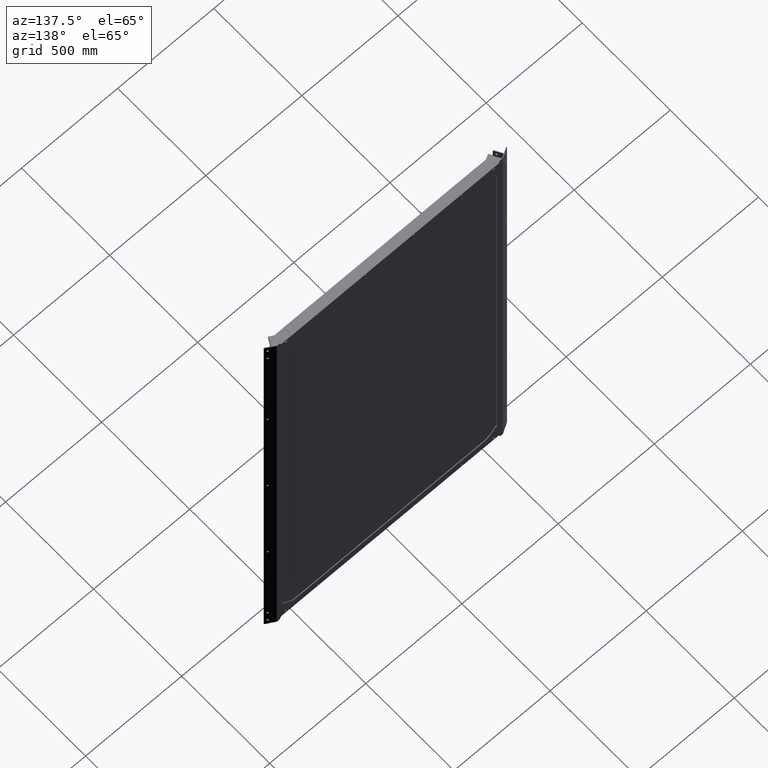
[diagram: clean part render]
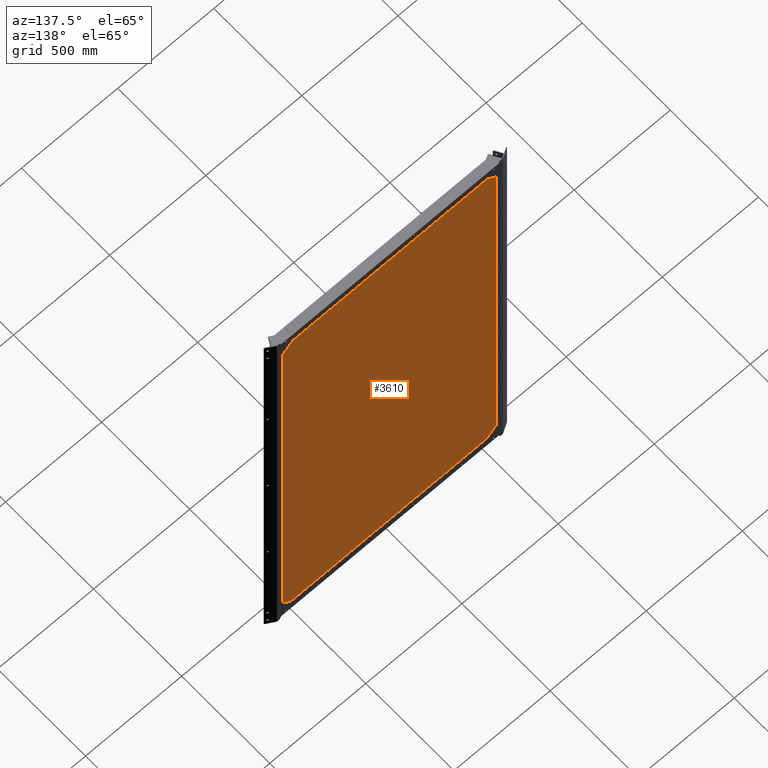
[diagram: same view with one face highlighted and labeled with its STEP entity id]
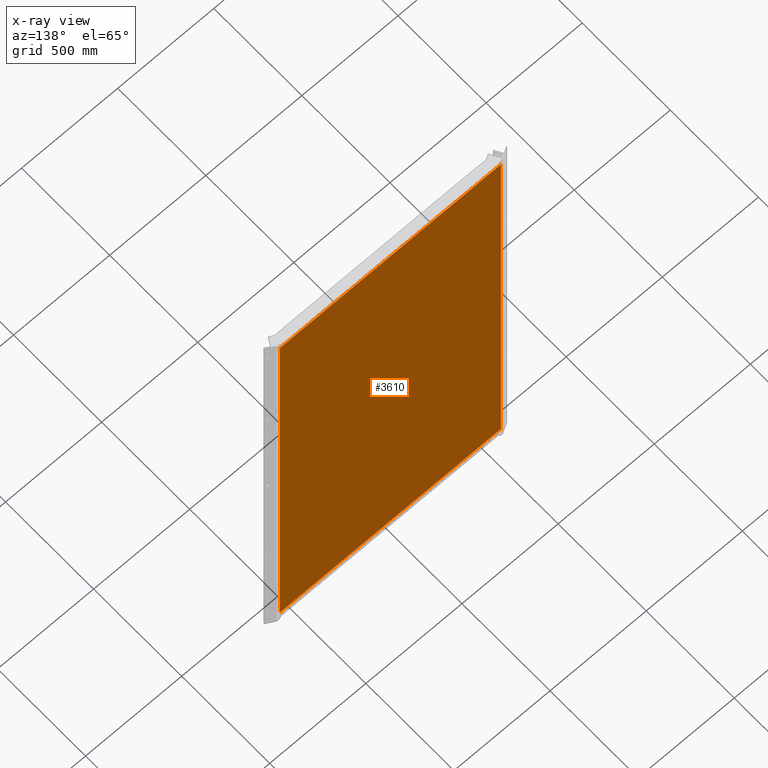
[diagram: x-ray of the same camera — body ghosted, the highlighted face saturated]
A machine part, auxiliary view. The second image highlights one B-rep face of the part: STEP entity #3610.
The next image is the same camera in x-ray: the body ghosted, the highlighted face saturated — about 0% of this face is hidden behind the body in this view.
In plain terms, the highlighted planar face has unit normal (0, -1, 0).
Its self-contained STEP definition (entity closure, byte-faithful):
#32 = LINE ( 'NONE', #2105, #873 ) ;
#84 = DIRECTION ( 'NONE',  ( 0.000000000000000000, -1.000000000000000000, 0.000000000000000000 ) ) ;
#873 = VECTOR ( 'NONE', #6454, 1000.000000000000000 ) ;
#1272 = DIRECTION ( 'NONE',  ( -0.000000000000000000, -0.000000000000000000, 1.000000000000000000 ) ) ;
#1362 = VERTEX_POINT ( 'NONE', #3367 ) ;
#1800 = CARTESIAN_POINT ( 'NONE',  ( 1199.999999999999773, 25.00000000000000000, -579.9999999999998863 ) ) ;
#1849 = AXIS2_PLACEMENT_3D ( 'NONE', #10084, #84, #9016 ) ;
#2105 = CARTESIAN_POINT ( 'NONE',  ( 1199.999999999999773, 25.00000000000000000, -579.9999999999998863 ) ) ;
#2193 = LINE ( 'NONE', #7905, #6442 ) ;
#2608 = VERTEX_POINT ( 'NONE', #12343 ) ;
#3318 = DIRECTION ( 'NONE',  ( -1.000000000000000000, 0.000000000000000000, 0.000000000000000000 ) ) ;
#3367 = CARTESIAN_POINT ( 'NONE',  ( -1200.000000000000227, 25.00000000000000000, -579.9999999999998863 ) ) ;
#3499 = DIRECTION ( 'NONE',  ( 0.000000000000000000, 0.000000000000000000, -1.000000000000000000 ) ) ;
#3513 = FACE_OUTER_BOUND ( 'NONE', #7499, .T. ) ;
#3610 = ADVANCED_FACE ( 'NONE', ( #3513 ), #5729, .F. ) ;
#4385 = LINE ( 'NONE', #8736, #10662 ) ;
#5238 = VERTEX_POINT ( 'NONE', #1800 ) ;
#5729 = PLANE ( 'NONE',  #1849 ) ;
#5996 = EDGE_CURVE ( 'NONE', #1362, #2608, #2193, .T. ) ;
#6360 = ORIENTED_EDGE ( 'NONE', *, *, #8235, .T. ) ;
#6442 = VECTOR ( 'NONE', #1272, 1000.000000000000000 ) ;
#6454 = DIRECTION ( 'NONE',  ( -1.000000000000000000, -0.000000000000000000, -0.000000000000000000 ) ) ;
#6573 = LINE ( 'NONE', #10003, #6721 ) ;
#6721 = VECTOR ( 'NONE', #3499, 1000.000000000000000 ) ;
#7499 = EDGE_LOOP ( 'NONE', ( #6360, #12517, #12018, #11486 ) ) ;
#7905 = CARTESIAN_POINT ( 'NONE',  ( -1200.000000000000227, 25.00000000000000000, 573.0000000000000000 ) ) ;
#8235 = EDGE_CURVE ( 'NONE', #8372, #5238, #6573, .T. ) ;
#8372 = VERTEX_POINT ( 'NONE', #12375 ) ;
#8736 = CARTESIAN_POINT ( 'NONE',  ( 4825.050751492372910, 25.00000000000007105, 570.0000000000001137 ) ) ;
#9016 = DIRECTION ( 'NONE',  ( 0.000000000000000000, -0.000000000000000000, -1.000000000000000000 ) ) ;
#10003 = CARTESIAN_POINT ( 'NONE',  ( 1199.999999999999773, 25.00000000000000000, 573.0000000000000000 ) ) ;
#10084 = CARTESIAN_POINT ( 'NONE',  ( 0.000000000000000000, 25.00000000000000000, 0.000000000000000000 ) ) ;
#10662 = VECTOR ( 'NONE', #3318, 1000.000000000000000 ) ;
#11486 = ORIENTED_EDGE ( 'NONE', *, *, #12632, .F. ) ;
#12018 = ORIENTED_EDGE ( 'NONE', *, *, #5996, .T. ) ;
#12343 = CARTESIAN_POINT ( 'NONE',  ( -1200.000000000000227, 25.00000000000007105, 570.0000000000001137 ) ) ;
#12375 = CARTESIAN_POINT ( 'NONE',  ( 1199.999999999999773, 25.00000000000007105, 570.0000000000001137 ) ) ;
#12517 = ORIENTED_EDGE ( 'NONE', *, *, #13672, .T. ) ;
#12632 = EDGE_CURVE ( 'NONE', #8372, #2608, #4385, .T. ) ;
#13672 = EDGE_CURVE ( 'NONE', #5238, #1362, #32, .T. ) ;